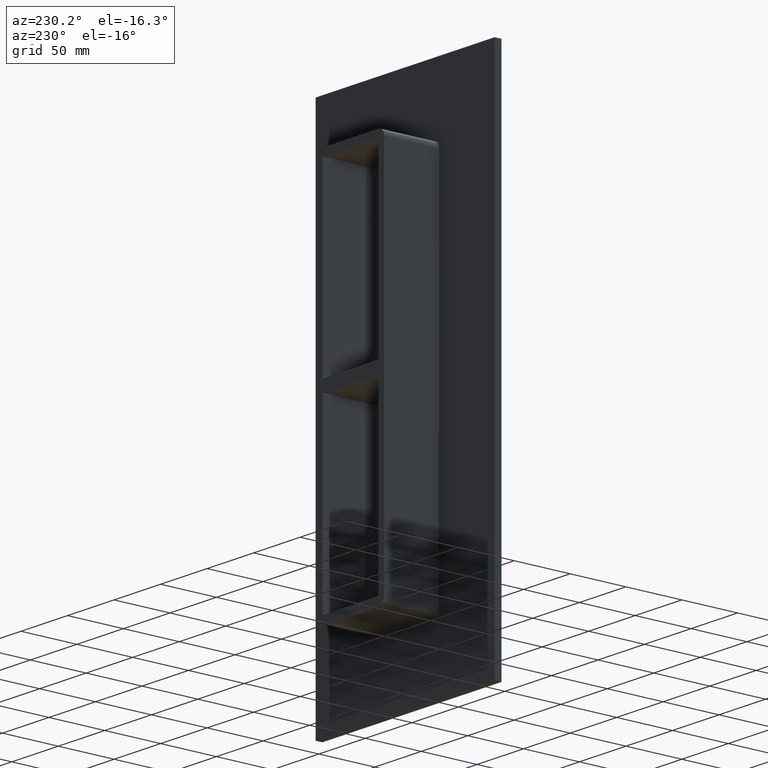
[diagram: clean part render]
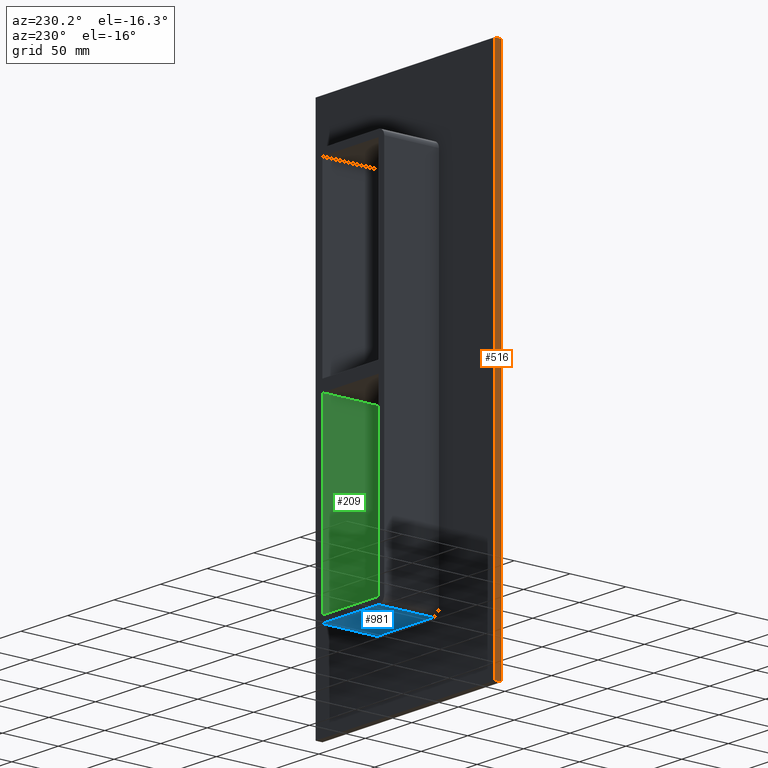
[diagram: same view with three faces highlighted in distinct colors, each labeled with its STEP entity id]
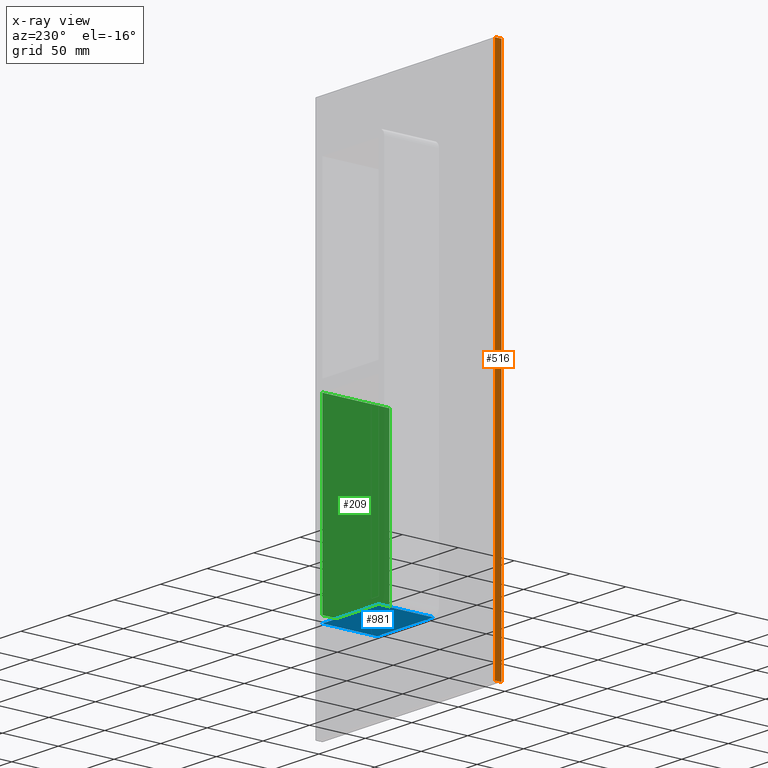
[diagram: x-ray of the same camera — body ghosted, the three highlighted faces saturated]
A machine part, auxiliary view with three faces highlighted in distinct colors.
The next image is the same camera in x-ray (body ghosted, the three faces saturated) — at least one of them is partly hidden behind the body in this view.
Their STEP definitions:

[orange] entity #516 — the highlighted planar face has unit normal (-1, 0, 0).
#248=CARTESIAN_POINT('',(-96.25,6.000000000000001,-230.50000000000009));
#249=VERTEX_POINT('',#248);
#256=CARTESIAN_POINT('',(-96.25,6.000000000000001,230.5));
#257=VERTEX_POINT('',#256);
#258=CARTESIAN_POINT('',(-96.25,6.000000000000001,-230.50000000000009));
#259=DIRECTION('',(0.0,0.0,1.0));
#260=VECTOR('',#259,461.00000000000011);
#261=LINE('',#258,#260);
#262=EDGE_CURVE('',#249,#257,#261,.T.);
#358=CARTESIAN_POINT('',(-96.25,0.0,-230.50000000000009));
#359=VERTEX_POINT('',#358);
#374=CARTESIAN_POINT('',(-96.25,0.0,230.50000000000006));
#375=VERTEX_POINT('',#374);
#382=CARTESIAN_POINT('',(-96.25,0.0,-230.50000000000009));
#383=DIRECTION('',(0.0,0.0,1.0));
#384=VECTOR('',#383,461.00000000000011);
#385=LINE('',#382,#384);
#386=EDGE_CURVE('',#359,#375,#385,.T.);
#491=CARTESIAN_POINT('',(-96.25,0.0,230.50000000000006));
#492=DIRECTION('',(0.0,1.0,0.0));
#493=VECTOR('',#492,6.000000000000001);
#494=LINE('',#491,#493);
#495=EDGE_CURVE('',#375,#257,#494,.T.);
#500=CARTESIAN_POINT('',(-96.25,0.0,-230.50000000000009));
#501=DIRECTION('',(-1.0,0.0,0.0));
#502=DIRECTION('',(0.0,0.0,1.0));
#503=AXIS2_PLACEMENT_3D('',#500,#501,#502);
#504=PLANE('',#503);
#505=ORIENTED_EDGE('',*,*,#386,.T.);
#506=ORIENTED_EDGE('',*,*,#495,.T.);
#507=ORIENTED_EDGE('',*,*,#262,.F.);
#508=CARTESIAN_POINT('',(-96.25,0.0,-230.50000000000009));
#509=DIRECTION('',(0.0,1.0,0.0));
#510=VECTOR('',#509,6.000000000000001);
#511=LINE('',#508,#510);
#512=EDGE_CURVE('',#359,#249,#511,.T.);
#513=ORIENTED_EDGE('',*,*,#512,.F.);
#514=EDGE_LOOP('',(#505,#506,#507,#513));
#515=FACE_OUTER_BOUND('',#514,.T.);
#516=ADVANCED_FACE('',(#515),#504,.T.);

[blue] entity #981 — the highlighted planar face has unit normal (0, 0, -1).
#316=CARTESIAN_POINT('',(-30.249999999999986,6.000000000000001,-170.50000000000009));
#317=VERTEX_POINT('',#316);
#325=CARTESIAN_POINT('',(30.249999999999986,6.000000000000001,-170.50000000000009));
#326=VERTEX_POINT('',#325);
#327=CARTESIAN_POINT('',(30.249999999999986,6.000000000000001,-170.50000000000009));
#328=DIRECTION('',(-1.0,0.0,0.0));
#329=VECTOR('',#328,60.499999999999972);
#330=LINE('',#327,#329);
#331=EDGE_CURVE('',#326,#317,#330,.T.);
#606=CARTESIAN_POINT('',(-30.249999999999986,55.0,-170.50000000000006));
#607=VERTEX_POINT('',#606);
#615=CARTESIAN_POINT('',(-30.249999999999986,6.000000000000001,-170.50000000000009));
#616=DIRECTION('',(0.0,1.0,0.0));
#617=VECTOR('',#616,49.0);
#618=LINE('',#615,#617);
#619=EDGE_CURVE('',#317,#607,#618,.T.);
#958=CARTESIAN_POINT('',(30.249999999999986,0.0,-170.50000000000009));
#959=DIRECTION('',(0.0,0.0,-1.0));
#960=DIRECTION('',(-1.0,0.0,0.0));
#961=AXIS2_PLACEMENT_3D('',#958,#959,#960);
#962=PLANE('',#961);
#963=ORIENTED_EDGE('',*,*,#331,.T.);
#964=ORIENTED_EDGE('',*,*,#619,.T.);
#965=CARTESIAN_POINT('',(30.249999999999986,55.0,-170.50000000000006));
#966=VERTEX_POINT('',#965);
#967=CARTESIAN_POINT('',(30.249999999999986,55.0,-170.50000000000009));
#968=DIRECTION('',(-1.0,0.0,0.0));
#969=VECTOR('',#968,60.499999999999972);
#970=LINE('',#967,#969);
#971=EDGE_CURVE('',#966,#607,#970,.T.);
#972=ORIENTED_EDGE('',*,*,#971,.F.);
#973=CARTESIAN_POINT('',(30.249999999999986,6.000000000000001,-170.50000000000009));
#974=DIRECTION('',(0.0,1.0,0.0));
#975=VECTOR('',#974,49.0);
#976=LINE('',#973,#975);
#977=EDGE_CURVE('',#326,#966,#976,.T.);
#978=ORIENTED_EDGE('',*,*,#977,.F.);
#979=EDGE_LOOP('',(#963,#964,#972,#978));
#980=FACE_OUTER_BOUND('',#979,.T.);
#981=ADVANCED_FACE('',(#980),#962,.T.);

[green] entity #209 — the highlighted planar face has unit normal (1, 0, 0).
#73=CARTESIAN_POINT('',(30.250000000000004,-5.0,-4.999999999999929));
#74=VERTEX_POINT('',#73);
#91=CARTESIAN_POINT('',(30.250000000000004,55.0,-4.999999999999929));
#92=VERTEX_POINT('',#91);
#99=CARTESIAN_POINT('',(30.250000000000004,-5.0,-4.999999999999929));
#100=DIRECTION('',(0.0,1.0,0.0));
#101=VECTOR('',#100,60.0);
#102=LINE('',#99,#101);
#103=EDGE_CURVE('',#74,#92,#102,.T.);
#179=CARTESIAN_POINT('',(30.250000000000004,0.0,164.50000000000003));
#180=DIRECTION('',(1.0,0.0,0.0));
#181=DIRECTION('',(0.0,0.0,-1.0));
#182=AXIS2_PLACEMENT_3D('',#179,#180,#181);
#183=PLANE('',#182);
#184=ORIENTED_EDGE('',*,*,#103,.T.);
#185=CARTESIAN_POINT('',(30.250000000000004,55.0,-164.5));
#186=VERTEX_POINT('',#185);
#187=CARTESIAN_POINT('',(30.250000000000004,55.0,-164.49999999999997));
#188=DIRECTION('',(0.0,0.0,1.0));
#189=VECTOR('',#188,159.50000000000006);
#190=LINE('',#187,#189);
#191=EDGE_CURVE('',#186,#92,#190,.T.);
#192=ORIENTED_EDGE('',*,*,#191,.F.);
#193=CARTESIAN_POINT('',(30.250000000000004,-5.0,-164.5));
#194=VERTEX_POINT('',#193);
#195=CARTESIAN_POINT('',(30.250000000000004,55.0,-164.5));
#196=DIRECTION('',(0.0,-1.0,0.0));
#197=VECTOR('',#196,60.0);
#198=LINE('',#195,#197);
#199=EDGE_CURVE('',#186,#194,#198,.T.);
#200=ORIENTED_EDGE('',*,*,#199,.T.);
#201=CARTESIAN_POINT('',(30.250000000000004,-5.0,-4.999999999999929));
#202=DIRECTION('',(0.0,0.0,-1.0));
#203=VECTOR('',#202,159.50000000000006);
#204=LINE('',#201,#203);
#205=EDGE_CURVE('',#74,#194,#204,.T.);
#206=ORIENTED_EDGE('',*,*,#205,.F.);
#207=EDGE_LOOP('',(#184,#192,#200,#206));
#208=FACE_OUTER_BOUND('',#207,.T.);
#209=ADVANCED_FACE('',(#208),#183,.F.);